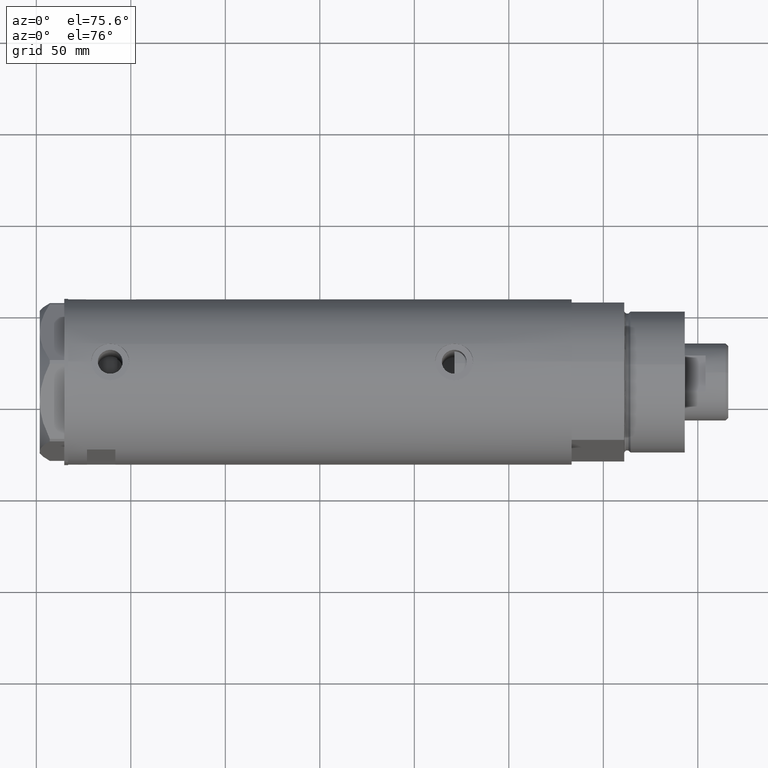
[diagram: clean part render]
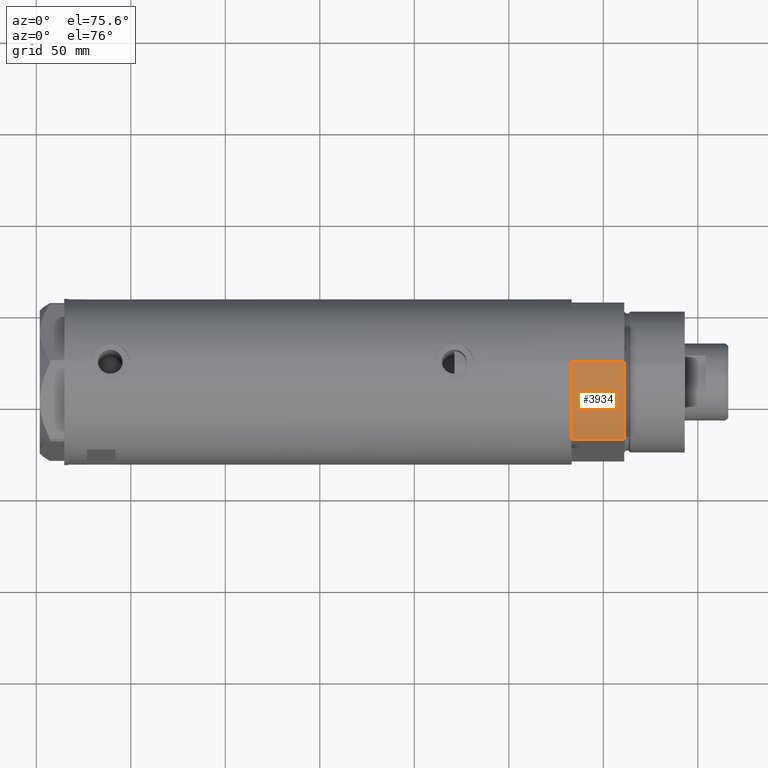
[diagram: same view with one face highlighted and labeled with its STEP entity id]
A machine part, auxiliary view. The second image highlights one B-rep face of the part: STEP entity #3934.
In plain terms, the highlighted cylindrical surface (partial cylindrical patch) has radius 44 mm, axis along (-1, -0, 0).
Its self-contained STEP definition (entity closure, byte-faithful):
#238 = DIRECTION ( 'NONE',  ( 1.000000000000000000, 0.000000000000000000, 0.000000000000000000 ) ) ;
#354 = VERTEX_POINT ( 'NONE', #720 ) ;
#495 = EDGE_CURVE ( 'NONE', #4149, #354, #2837, .T. ) ;
#522 = CARTESIAN_POINT ( 'NONE',  ( -44.00000000000000000, 0.000000000000000000, 27.89999999999999858 ) ) ;
#720 = CARTESIAN_POINT ( 'NONE',  ( -23.01629857296780557, -37.50000000000000000, 0.000000000000000000 ) ) ;
#746 = VERTEX_POINT ( 'NONE', #522 ) ;
#778 = AXIS2_PLACEMENT_3D ( 'NONE', #4079, #976, #238 ) ;
#976 = DIRECTION ( 'NONE',  ( 0.000000000000000000, 0.000000000000000000, 1.000000000000000000 ) ) ;
#1058 = CARTESIAN_POINT ( 'NONE',  ( -23.01629857296780557, -37.50000000000000000, 27.89999999999999858 ) ) ;
#1251 = DIRECTION ( 'NONE',  ( -0.000000000000000000, -0.000000000000000000, -1.000000000000000000 ) ) ;
#1383 = ORIENTED_EDGE ( 'NONE', *, *, #1761, .F. ) ;
#1687 = EDGE_LOOP ( 'NONE', ( #1383, #2795, #3423, #3860 ) ) ;
#1761 = EDGE_CURVE ( 'NONE', #746, #3410, #4314, .T. ) ;
#2243 = DIRECTION ( 'NONE',  ( -1.000000000000000000, 0.000000000000000000, 0.000000000000000000 ) ) ;
#2329 = CARTESIAN_POINT ( 'NONE',  ( -23.01629857296780557, -37.50000000000000000, 0.000000000000000000 ) ) ;
#2558 = AXIS2_PLACEMENT_3D ( 'NONE', #2581, #3583, #2243 ) ;
#2581 = CARTESIAN_POINT ( 'NONE',  ( 0.000000000000000000, 0.000000000000000000, 27.89999999999999858 ) ) ;
#2642 = VECTOR ( 'NONE', #3112, 1000.000000000000000 ) ;
#2795 = ORIENTED_EDGE ( 'NONE', *, *, #3063, .T. ) ;
#2837 = CIRCLE ( 'NONE', #2993, 44.00000000000000000 ) ;
#2993 = AXIS2_PLACEMENT_3D ( 'NONE', #3517, #3546, #3204 ) ;
#3019 = LINE ( 'NONE', #4416, #3594 ) ;
#3063 = EDGE_CURVE ( 'NONE', #746, #4149, #3019, .T. ) ;
#3112 = DIRECTION ( 'NONE',  ( -0.000000000000000000, -0.000000000000000000, 1.000000000000000000 ) ) ;
#3204 = DIRECTION ( 'NONE',  ( 1.000000000000000000, 0.000000000000000000, 0.000000000000000000 ) ) ;
#3410 = VERTEX_POINT ( 'NONE', #1058 ) ;
#3423 = ORIENTED_EDGE ( 'NONE', *, *, #495, .T. ) ;
#3517 = CARTESIAN_POINT ( 'NONE',  ( 0.000000000000000000, 0.000000000000000000, 0.000000000000000000 ) ) ;
#3546 = DIRECTION ( 'NONE',  ( 0.000000000000000000, 0.000000000000000000, 1.000000000000000000 ) ) ;
#3583 = DIRECTION ( 'NONE',  ( -0.000000000000000000, -0.000000000000000000, -1.000000000000000000 ) ) ;
#3594 = VECTOR ( 'NONE', #1251, 1000.000000000000000 ) ;
#3609 = FACE_OUTER_BOUND ( 'NONE', #1687, .T. ) ;
#3860 = ORIENTED_EDGE ( 'NONE', *, *, #4486, .T. ) ;
#3934 = ADVANCED_FACE ( 'NONE', ( #3609 ), #4368, .T. ) ;
#4079 = CARTESIAN_POINT ( 'NONE',  ( 0.000000000000000000, 0.000000000000000000, 27.89999999999999858 ) ) ;
#4113 = LINE ( 'NONE', #2329, #2642 ) ;
#4126 = CARTESIAN_POINT ( 'NONE',  ( -44.00000000000000000, 0.000000000000000000, 0.000000000000000000 ) ) ;
#4149 = VERTEX_POINT ( 'NONE', #4126 ) ;
#4314 = CIRCLE ( 'NONE', #778, 44.00000000000000000 ) ;
#4368 = CYLINDRICAL_SURFACE ( 'NONE', #2558, 44.00000000000000000 ) ;
#4416 = CARTESIAN_POINT ( 'NONE',  ( -44.00000000000000000, 0.000000000000000000, 27.89999999999999858 ) ) ;
#4486 = EDGE_CURVE ( 'NONE', #354, #3410, #4113, .T. ) ;